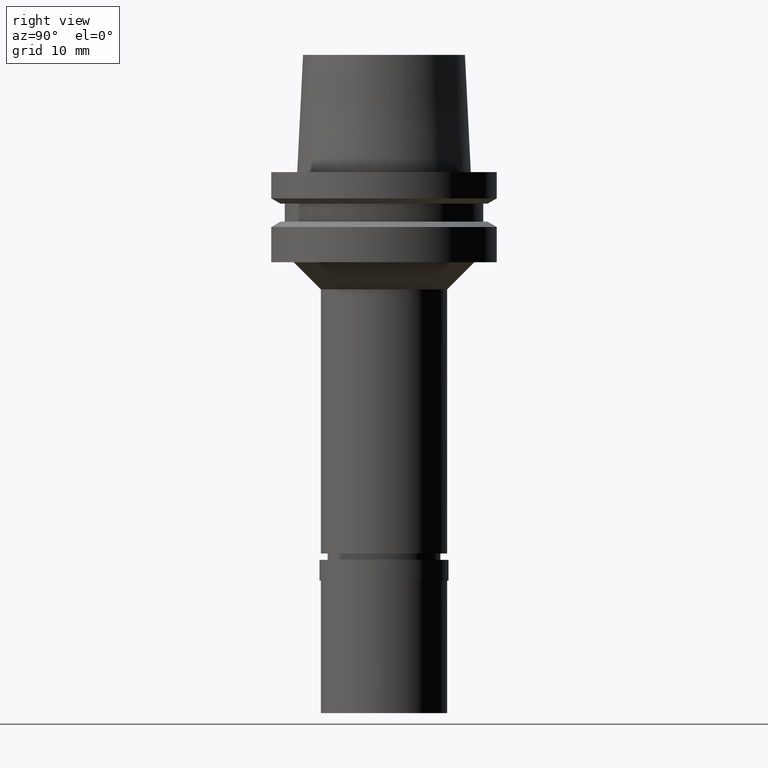
[diagram: clean part render]
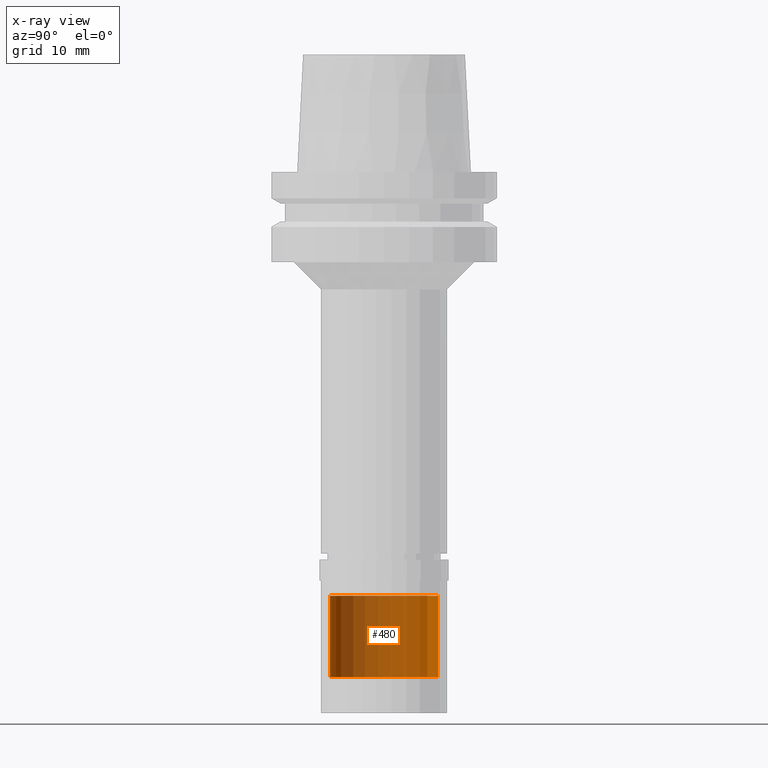
[diagram: x-ray — body ghosted, one internal face saturated and labeled with its STEP entity id]
A machine part, right view, then the same camera in x-ray: the body is ghosted and one INTERNAL B-rep face — a face not visible from any outside direction — is saturated and labeled: STEP entity #480.
In plain terms, the highlighted cylindrical surface (partial cylindrical patch) has radius 6 mm, axis along (0, 0, 1).
Its self-contained STEP definition (entity closure, byte-faithful):
#146 = AXIS2_PLACEMENT_3D ( 'NONE', #2402, #268, #897 ) ;
#221 = EDGE_CURVE ( 'NONE', #2313, #1300, #606, .T. ) ;
#268 = DIRECTION ( 'NONE',  ( 0.0000000000000000000, 0.0000000000000000000, -1.000000000000000000 ) ) ;
#335 = CARTESIAN_POINT ( 'NONE',  ( 0.0000000000000000000, -6.000000000000000000, -47.00000000000000000 ) ) ;
#440 = ORIENTED_EDGE ( 'NONE', *, *, #221, .T. ) ;
#480 = ADVANCED_FACE ( 'NONE', ( #2045 ), #2661, .T. ) ;
#581 = DIRECTION ( 'NONE',  ( 0.0000000000000000000, 0.0000000000000000000, 1.000000000000000000 ) ) ;
#606 = CIRCLE ( 'NONE', #1026, 6.000000000000000000 ) ;
#688 = ORIENTED_EDGE ( 'NONE', *, *, #1374, .F. ) ;
#710 = EDGE_LOOP ( 'NONE', ( #440, #688, #2345, #1930 ) ) ;
#723 = EDGE_CURVE ( 'NONE', #880, #1995, #932, .T. ) ;
#750 = CARTESIAN_POINT ( 'NONE',  ( 0.0000000000000000000, 6.000000000000000000, -47.00000000000000000 ) ) ;
#785 = CARTESIAN_POINT ( 'NONE',  ( 0.0000000000000000000, 0.0000000000000000000, -56.00000000000000000 ) ) ;
#842 = CARTESIAN_POINT ( 'NONE',  ( 0.0000000000000000000, 6.000000000000000000, -47.00000000000000000 ) ) ;
#880 = VERTEX_POINT ( 'NONE', #335 ) ;
#897 = DIRECTION ( 'NONE',  ( 0.0000000000000000000, -1.000000000000000000, 0.0000000000000000000 ) ) ;
#932 = CIRCLE ( 'NONE', #146, 6.000000000000000000 ) ;
#1019 = VECTOR ( 'NONE', #2147, 1000.000000000000000 ) ;
#1026 = AXIS2_PLACEMENT_3D ( 'NONE', #785, #581, #1614 ) ;
#1133 = CARTESIAN_POINT ( 'NONE',  ( 0.0000000000000000000, -6.000000000000000000, -56.00000000000000000 ) ) ;
#1300 = VERTEX_POINT ( 'NONE', #1133 ) ;
#1360 = VECTOR ( 'NONE', #2207, 1000.000000000000000 ) ;
#1374 = EDGE_CURVE ( 'NONE', #880, #1300, #1916, .T. ) ;
#1540 = CARTESIAN_POINT ( 'NONE',  ( 0.0000000000000000000, 6.000000000000000000, -56.00000000000000000 ) ) ;
#1614 = DIRECTION ( 'NONE',  ( 0.0000000000000000000, 1.000000000000000000, 0.0000000000000000000 ) ) ;
#1636 = AXIS2_PLACEMENT_3D ( 'NONE', #2257, #2480, #1685 ) ;
#1685 = DIRECTION ( 'NONE',  ( 0.0000000000000000000, 1.000000000000000000, 0.0000000000000000000 ) ) ;
#1717 = CARTESIAN_POINT ( 'NONE',  ( 0.0000000000000000000, -6.000000000000000000, -47.00000000000000000 ) ) ;
#1916 = LINE ( 'NONE', #1717, #1019 ) ;
#1930 = ORIENTED_EDGE ( 'NONE', *, *, #2350, .T. ) ;
#1995 = VERTEX_POINT ( 'NONE', #842 ) ;
#1998 = LINE ( 'NONE', #750, #1360 ) ;
#2045 = FACE_OUTER_BOUND ( 'NONE', #710, .T. ) ;
#2147 = DIRECTION ( 'NONE',  ( 0.0000000000000000000, 0.0000000000000000000, -1.000000000000000000 ) ) ;
#2207 = DIRECTION ( 'NONE',  ( 0.0000000000000000000, 0.0000000000000000000, -1.000000000000000000 ) ) ;
#2257 = CARTESIAN_POINT ( 'NONE',  ( 0.0000000000000000000, 0.0000000000000000000, -59.45000000000000284 ) ) ;
#2313 = VERTEX_POINT ( 'NONE', #1540 ) ;
#2345 = ORIENTED_EDGE ( 'NONE', *, *, #723, .T. ) ;
#2350 = EDGE_CURVE ( 'NONE', #1995, #2313, #1998, .T. ) ;
#2402 = CARTESIAN_POINT ( 'NONE',  ( 0.0000000000000000000, 0.0000000000000000000, -47.00000000000000000 ) ) ;
#2480 = DIRECTION ( 'NONE',  ( 0.0000000000000000000, 0.0000000000000000000, 1.000000000000000000 ) ) ;
#2661 = CYLINDRICAL_SURFACE ( 'NONE', #1636, 6.000000000000000000 ) ;